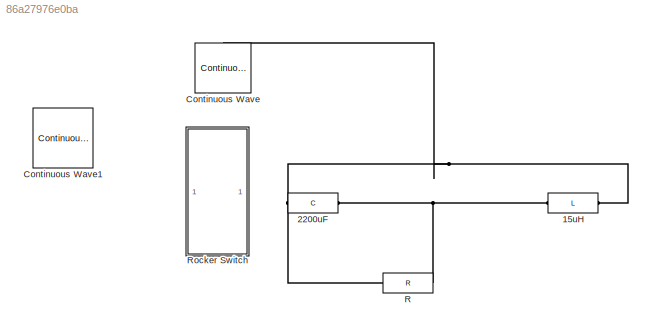
MODEL slx_86a27976e0ba
KIND model
CONFIG AbsTol = auto
CONFIG EnableMultiTasking = off
CONFIG FixedStep = auto
CONFIG MaxStep = auto
CONFIG MinStep = auto
CONFIG RelTol = 1e-3
CONFIG SampleTimeConstraint = Unconstrained
CONFIG Solver = VariableStepAuto
CONFIG SolverName = VariableStepAuto
CONFIG StartTime = 0.0
CONFIG StopTime = 10.0
BLOCK [Reference] 15uH  REF=simrfV2elements/L
  Ports = [0, 0, 0, 0, 0, 1, 1]
  SourceBlock = simrfV2elements/L
  SourceType = Inductor
BLOCK [Reference] 2200uF  REF=simrfV2elements/C
  Ports = [0, 0, 0, 0, 0, 1, 1]
  SourceBlock = simrfV2elements/C
  SourceType = Capacitor
BLOCK [Reference] Continuous Wave  REF=simrfV2sources1/Continuous
Wave
  Ports = [0, 0, 0, 0, 0, 1]
  SourceBlock = simrfV2sources1/Continuous\nWave
  SourceType = CW Source
BLOCK [Reference] Continuous Wave1  REF=simrfV2sources1/Continuous
Wave
  Ports = [0, 0, 0, 0, 0, 1]
  SourceBlock = simrfV2sources1/Continuous\nWave
  SourceType = CW Source
BLOCK [Reference] R  REF=simrfV2elements/R
  Ports = [0, 0, 0, 0, 0, 1, 1]
  SourceBlock = simrfV2elements/R
  SourceType = Resistor
BLOCK [SubSystem] Rocker Switch
  DialogController = hmiCreateDDGDialog
  IsWebBlock = on
  MaskHideContents = on
  Ports = []
  RequestExecContextInheritance = off
  Variant = off
PNET net1: 15uH:LConn1 -- 2200uF:RConn1 -- R:RConn1
PNET net2: 15uH:RConn1 -- 2200uF:LConn1 -- Continuous Wave:LConn1 -- R:LConn1
note: PNET lines group multi-terminal physical nets as a canonical sorted terminal list (undirected conserving connections); 2-terminal nets keep the pairwise PLINE form
